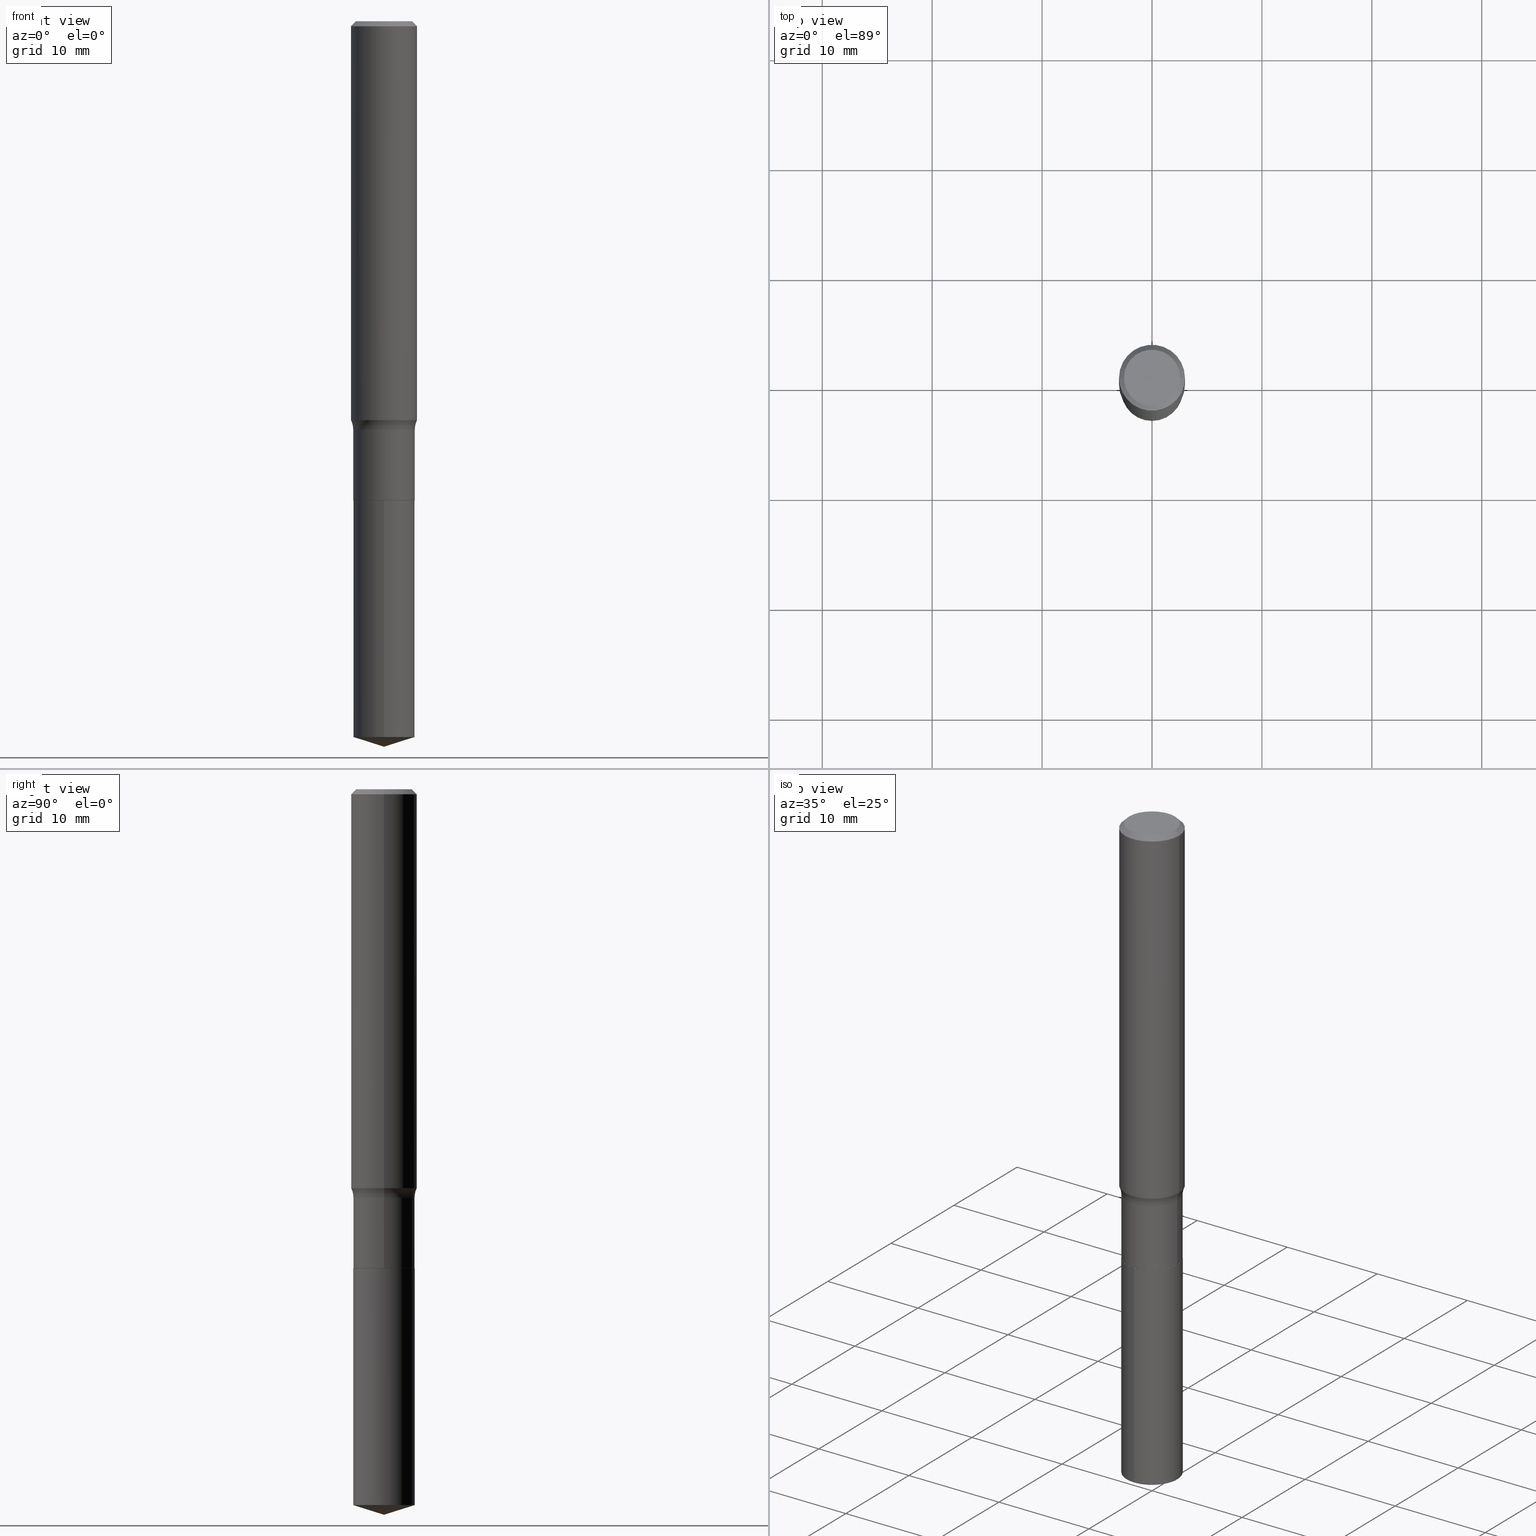
[diagram: canonical four-view strip — front | top / right | iso, engineering-drawing reading convention]
A machine part, canonical four-view strip (front | top / right | iso — engineering-drawing reading convention). The complete STEP part file that produces these views, byte-faithful:
ISO-10303-21;
HEADER;
FILE_DESCRIPTION (( 'STEP AP203' ),
    '1' );
FILE_NAME ('63751.STEP',
    '2024-04-19T15:07:28',
    ( '' ),
    ( '' ),
    'SwSTEP 2.0',
    'SolidWorks 2023',
    '' );
FILE_SCHEMA (( 'CONFIG_CONTROL_DESIGN' ));
ENDSEC;

DATA;
#1 = DIRECTION ( 'NONE',  ( 1.000000000000000000, -6.982962677686266711E-15, 0.000000000000000000 ) ) ;
#2 = DIRECTION ( 'NONE',  ( -2.445657340504628845E-29, 3.491211346966925605E-15, 1.000000000000000000 ) ) ;
#3 = VERTEX_POINT ( 'NONE', #460 ) ;
#4 = VERTEX_POINT ( 'NONE', #418 ) ;
#5 = PLANE ( 'NONE',  #120 ) ;
#6 = CARTESIAN_POINT ( 'NONE',  ( 3.494079824393523856E-29, -4.988619962128744507E-15, -1.428797544076708670 ) ) ;
#7 = AXIS2_PLACEMENT_3D ( 'NONE', #49, #386, #115 ) ;
#8 = APPLICATION_CONTEXT ( 'configuration controlled 3d designs of mechanical parts and assemblies' ) ;
#9 = ORIENTED_EDGE ( 'NONE', *, *, #61, .F. ) ;
#10 = CARTESIAN_POINT ( 'NONE',  ( 4.196424471413694799E-29, -5.991381977454837695E-15, -1.715999999999999970 ) ) ;
#11 = ORIENTED_EDGE ( 'NONE', *, *, #61, .T. ) ;
#12 = CARTESIAN_POINT ( 'NONE',  ( 4.197647205816786480E-29, -5.993127718124259199E-15, -1.716499999999999915 ) ) ;
#13 =( LENGTH_UNIT ( ) NAMED_UNIT ( * ) SI_UNIT ( $, .METRE. ) );
#14 = PRODUCT_DEFINITION ( 'UNKNOWN', '', #136, #57 ) ;
#15 = APPROVAL ( #451, 'UNSPECIFIED' ) ;
#16 = CARTESIAN_POINT ( 'NONE',  ( -0.1102499999999999869, 7.833733661755103618E-16, -5.423125937006033469E-30 ) ) ;
#17 = DIRECTION ( 'NONE',  ( 0.7071067811866199593, -2.468850131083015945E-15, 0.7071067811864750752 ) ) ;
#18 = AXIS2_PLACEMENT_3D ( 'NONE', #315, #277, #279 ) ;
#19 = AXIS2_PLACEMENT_3D ( 'NONE', #12, #363, #131 ) ;
#20 = CARTESIAN_POINT ( 'NONE',  ( 6.354801709083278687E-29, -9.071563563958859387E-15, -2.598399999999999821 ) ) ;
#21 = CARTESIAN_POINT ( 'NONE',  ( 4.197647205816786480E-29, -5.993127718124259199E-15, -1.716499999999999915 ) ) ;
#22 = EDGE_CURVE ( 'NONE', #147, #93, #211, .T. ) ;
#23 = DIRECTION ( 'NONE',  ( -1.000000000000000000, 6.982962677686266711E-15, 0.000000000000000000 ) ) ;
#24 = ORIENTED_EDGE ( 'NONE', *, *, #427, .T. ) ;
#25 = DIRECTION ( 'NONE',  ( -2.445657340504628845E-29, 3.491211346966926000E-15, 1.000000000000000000 ) ) ;
#26 = VERTEX_POINT ( 'NONE', #350 ) ;
#27 = CLOSED_SHELL ( 'NONE', ( #478, #256, #358, #352, #173 ) ) ;
#28 = CIRCLE ( 'NONE', #276, 0.07799999999999995826 ) ;
#29 = CIRCLE ( 'NONE', #204, 0.07799999999999995826 ) ;
#30 = SECURITY_CLASSIFICATION_LEVEL ( 'unclassified' ) ;
#31 = ADVANCED_FACE ( 'NONE', ( #228 ), #311, .F. ) ;
#32 = ORIENTED_EDGE ( 'NONE', *, *, #126, .F. ) ;
#33 = APPROVAL_DATE_TIME ( #454, #116 ) ;
#34 = CONICAL_SURFACE ( 'NONE', #182, 0.1180999999999999966, 0.7853981633974453924 ) ;
#35 = ORIENTED_EDGE ( 'NONE', *, *, #334, .T. ) ;
#36 = AXIS2_PLACEMENT_3D ( 'NONE', #450, #300, #463 ) ;
#37 = DIRECTION ( 'NONE',  ( 1.000000000000000000, -6.982962677686266711E-15, 4.876176775795936353E-29 ) ) ;
#38 = ADVANCED_FACE ( 'NONE', ( #75 ), #297, .F. ) ;
#39 = DIRECTION ( 'NONE',  ( 1.000000000000000000, -6.982962677686265922E-15, 4.876176775795935793E-29 ) ) ;
#40 = DIRECTION ( 'NONE',  ( -2.445468806185136877E-29, 3.491481338843145188E-15, 1.000000000000000000 ) ) ;
#41 = EDGE_LOOP ( 'NONE', ( #119, #53, #184, #296 ) ) ;
#42 = ADVANCED_BREP_SHAPE_REPRESENTATION ( '63751', ( #167, #327, #177 ), #84 ) ;
#43 = DIRECTION ( 'NONE',  ( -2.445657340504628845E-29, 3.491211346966925605E-15, 1.000000000000000000 ) ) ;
#44 = ORIENTED_EDGE ( 'NONE', *, *, #137, .F. ) ;
#45 = CYLINDRICAL_SURFACE ( 'NONE', #122, 0.1102500000000000008 ) ;
#46 = AXIS2_PLACEMENT_3D ( 'NONE', #232, #43, #146 ) ;
#47 = CIRCLE ( 'NONE', #380, 0.1102500000000000008 ) ;
#48 = ORIENTED_EDGE ( 'NONE', *, *, #420, .T. ) ;
#49 = CARTESIAN_POINT ( 'NONE',  ( 1.002970424325033577E-46, -1.431975951230896486E-32, -4.101342130344485961E-18 ) ) ;
#50 = ADVANCED_FACE ( 'NONE', ( #309 ), #5, .F. ) ;
#51 = ORIENTED_EDGE ( 'NONE', *, *, #387, .T. ) ;
#52 = CARTESIAN_POINT ( 'NONE',  ( 0.1181000000000001632, -5.813307854363494347E-15, -1.428797544076708670 ) ) ;
#53 = ORIENTED_EDGE ( 'NONE', *, *, #313, .F. ) ;
#54 = CARTESIAN_POINT ( 'NONE',  ( -8.993124965270355616E-28, 1.283772386236047280E-13, 36.77167874015748339 ) ) ;
#55 = CONICAL_SURFACE ( 'NONE', #176, 124.8659371009146923, 1.265363707695890794 ) ;
#56 = EDGE_CURVE ( 'NONE', #3, #172, #68, .T. ) ;
#57 = DESIGN_CONTEXT ( 'detailed design', #8, 'design' ) ;
#58 = DIRECTION ( 'NONE',  ( 1.000000000000000000, -6.982962677686270655E-15, 0.000000000000000000 ) ) ;
#59 = CARTESIAN_POINT ( 'NONE',  ( -0.1102499999999999730, -4.766161647848727228E-15, -1.462899999999999867 ) ) ;
#60 = CARTESIAN_POINT ( 'NONE',  ( -0.1181000000000001632, -4.149468991196065521E-15, -1.428797544076708670 ) ) ;
#61 = EDGE_CURVE ( 'NONE', #26, #85, #162, .T. ) ;
#62 = AXIS2_PLACEMENT_3D ( 'NONE', #87, #466, #280 ) ;
#63 = DIRECTION ( 'NONE',  ( -2.445468806185136597E-29, 3.491481338843145583E-15, 1.000000000000000000 ) ) ;
#64 = CARTESIAN_POINT ( 'NONE',  ( 0.1097500000000000003, -6.759507872000326876E-15, -1.716499999999999915 ) ) ;
#65 = EDGE_CURVE ( 'NONE', #145, #124, #291, .T. ) ;
#66 = APPROVAL_ROLE ( '' ) ;
#67 = COORDINATED_UNIVERSAL_TIME_OFFSET ( 5, 0, .BEHIND. ) ;
#68 = LINE ( 'NONE', #345, #168 ) ;
#69 = CARTESIAN_POINT ( 'NONE',  ( 0.000000000000000000, 0.000000000000000000, 0.000000000000000000 ) ) ;
#70 = ADVANCED_FACE ( 'NONE', ( #395 ), #34, .T. ) ;
#71 = APPROVAL_DATE_TIME ( #371, #199 ) ;
#72 = ORIENTED_EDGE ( 'NONE', *, *, #435, .T. ) ;
#73 = LOCAL_TIME ( 11, 7, 28.00000000000000000, #139 ) ;
#74 = CYLINDRICAL_SURFACE ( 'NONE', #159, 0.1102499999999999869 ) ;
#75 = FACE_OUTER_BOUND ( 'NONE', #469, .T. ) ;
#76 = CARTESIAN_POINT ( 'NONE',  ( 4.197647205816786480E-29, -5.993127718124259199E-15, -1.716499999999999915 ) ) ;
#77 = EDGE_LOOP ( 'NONE', ( #342, #278, #449, #347 ) ) ;
#78 = FACE_OUTER_BOUND ( 'NONE', #111, .T. ) ;
#79 = ORIENTED_EDGE ( 'NONE', *, *, #221, .F. ) ;
#80 = AXIS2_PLACEMENT_3D ( 'NONE', #353, #385, #149 ) ;
#81 = CC_DESIGN_PERSON_AND_ORGANIZATION_ASSIGNMENT ( #138, #183, ( #136 ) ) ;
#82 = ORIENTED_EDGE ( 'NONE', *, *, #435, .F. ) ;
#83 = CARTESIAN_POINT ( 'NONE',  ( 4.197647205816786480E-29, -5.993127718124259199E-15, -1.716499999999999915 ) ) ;
#84 =( GEOMETRIC_REPRESENTATION_CONTEXT ( 3 ) GLOBAL_UNCERTAINTY_ASSIGNED_CONTEXT ( ( #470 ) ) GLOBAL_UNIT_ASSIGNED_CONTEXT ( ( #325, #408, #222 ) ) REPRESENTATION_CONTEXT ( 'NONE', 'WORKASPACE' ) );
#85 = VERTEX_POINT ( 'NONE', #59 ) ;
#86 = DIRECTION ( 'NONE',  ( 7.105427357601001859E-15, 1.000000000000000000, -3.491481338843145583E-15 ) ) ;
#87 = CARTESIAN_POINT ( 'NONE',  ( 0.000000000000000000, 0.000000000000000000, 0.000000000000000000 ) ) ;
#88 = ADVANCED_FACE ( 'NONE', ( #241 ), #365, .T. ) ;
#89 = ORIENTED_EDGE ( 'NONE', *, *, #137, .T. ) ;
#90 = PLANE ( 'NONE',  #18 ) ;
#91 = CLOSED_SHELL ( 'NONE', ( #230, #70, #153, #376, #319, #442, #38, #490, #458, #50, #31, #88 ) ) ;
#92 = CIRCLE ( 'NONE', #349, 0.1003850000000000020 ) ;
#93 = VERTEX_POINT ( 'NONE', #355 ) ;
#94 = FACE_OUTER_BOUND ( 'NONE', #446, .T. ) ;
#95 = DIRECTION ( 'NONE',  ( -2.445657340504628845E-29, 3.491211346966925605E-15, 1.000000000000000000 ) ) ;
#96 = CARTESIAN_POINT ( 'NONE',  ( 4.332147990156996744E-31, -6.185159191760670395E-17, -0.01771500000000010913 ) ) ;
#97 = CARTESIAN_POINT ( 'NONE',  ( 0.000000000000000000, 0.000000000000000000, 0.000000000000000000 ) ) ;
#98 = VECTOR ( 'NONE', #323, 39.37007874015748143 ) ;
#99 = EDGE_CURVE ( 'NONE', #124, #145, #244, .T. ) ;
#100 = DIRECTION ( 'NONE',  ( 1.000000000000000000, 0.000000000000000000, 0.000000000000000000 ) ) ;
#101 = PERSON ( 'UNSPECIFIED', 'UNSPECIFIED', 'UNSPECIFIED', ('UNSPECIFIED'), ('UNSPECIFIED'), ('UNSPECIFIED') ) ;
#102 = VECTOR ( 'NONE', #25, 39.37007874015748143 ) ;
#103 = CALENDAR_DATE ( 2024, 19, 4 ) ;
#104 = DATE_AND_TIME ( #293, #170 ) ;
#105 = CC_DESIGN_PERSON_AND_ORGANIZATION_ASSIGNMENT ( #486, #301, ( #112 ) ) ;
#106 = DIRECTION ( 'NONE',  ( 2.438088387897960049E-29, -3.491481338843145188E-15, -1.000000000000000000 ) ) ;
#107 = FACE_OUTER_BOUND ( 'NONE', #163, .T. ) ;
#108 = DATE_TIME_ROLE ( 'creation_date' ) ;
#109 = CARTESIAN_POINT ( 'NONE',  ( 4.332147990156996744E-31, -6.185159191760670395E-17, -0.01771500000000010913 ) ) ;
#110 = DIRECTION ( 'NONE',  ( -2.445657340504628845E-29, 3.491211346966925605E-15, 1.000000000000000000 ) ) ;
#111 = EDGE_LOOP ( 'NONE', ( #488, #11, #422, #413 ) ) ;
#112 = SECURITY_CLASSIFICATION ( '', '', #30 ) ;
#113 = CARTESIAN_POINT ( 'NONE',  ( 0.1180999999999999966, -8.720764054544245267E-16, -0.01771500000000010913 ) ) ;
#114 = ORIENTED_EDGE ( 'NONE', *, *, #485, .F. ) ;
#115 = DIRECTION ( 'NONE',  ( 1.000000000000000000, -6.982962677686266711E-15, 4.876140833081945105E-29 ) ) ;
#116 = APPROVAL ( #481, 'UNSPECIFIED' ) ;
#117 = ORIENTED_EDGE ( 'NONE', *, *, #334, .F. ) ;
#118 = FACE_OUTER_BOUND ( 'NONE', #398, .T. ) ;
#119 = ORIENTED_EDGE ( 'NONE', *, *, #387, .F. ) ;
#120 = AXIS2_PLACEMENT_3D ( 'NONE', #156, #106, #410 ) ;
#121 = CARTESIAN_POINT ( 'NONE',  ( 3.577476316568235617E-29, -5.107688050593637090E-15, -1.462899999999999867 ) ) ;
#122 = AXIS2_PLACEMENT_3D ( 'NONE', #76, #110, #148 ) ;
#123 = LOCAL_TIME ( 11, 7, 28.00000000000000000, #262 ) ;
#124 = VERTEX_POINT ( 'NONE', #60 ) ;
#125 = DIRECTION ( 'NONE',  ( 1.000000000000000000, -6.982962677686264344E-15, 0.000000000000000000 ) ) ;
#126 = EDGE_CURVE ( 'NONE', #3, #330, #209, .T. ) ;
#127 = CARTESIAN_POINT ( 'NONE',  ( 0.1180999999999999966, -8.865394841523547570E-16, -0.01771500000000010913 ) ) ;
#128 = ORIENTED_EDGE ( 'NONE', *, *, #340, .T. ) ;
#129 = DIRECTION ( 'NONE',  ( 1.000000000000000000, -6.982962677686261977E-15, 0.000000000000000000 ) ) ;
#130 = AXIS2_PLACEMENT_3D ( 'NONE', #54, #360, #202 ) ;
#131 = DIRECTION ( 'NONE',  ( 1.000000000000000000, -6.982962677686264344E-15, 0.000000000000000000 ) ) ;
#132 = LINE ( 'NONE', #443, #416 ) ;
#133 = CC_DESIGN_PERSON_AND_ORGANIZATION_ASSIGNMENT ( #341, #215, ( #136 ) ) ;
#134 = CARTESIAN_POINT ( 'NONE',  ( -0.1003850000000000020, 7.319105043583386689E-16, -4.101342130349496461E-18 ) ) ;
#135 = ORIENTED_EDGE ( 'NONE', *, *, #286, .F. ) ;
#136 = PRODUCT_DEFINITION_FORMATION_WITH_SPECIFIED_SOURCE ( 'ANY', '', #227, .NOT_KNOWN. ) ;
#137 = EDGE_CURVE ( 'NONE', #330, #172, #373, .T. ) ;
#138 = PERSON_AND_ORGANIZATION ( #101, #194 ) ;
#139 = COORDINATED_UNIVERSAL_TIME_OFFSET ( 5, 0, .BEHIND. ) ;
#140 = VERTEX_POINT ( 'NONE', #436 ) ;
#141 = AXIS2_PLACEMENT_3D ( 'NONE', #321, #393, #429 ) ;
#142 = AXIS2_PLACEMENT_3D ( 'NONE', #21, #364, #207 ) ;
#143 = APPLICATION_PROTOCOL_DEFINITION ( 'international standard', 'config_control_design', 1994, #8 ) ;
#144 = DIRECTION ( 'NONE',  ( -6.982962677686265922E-15, -1.000000000000000000, 3.500519750498715082E-15 ) ) ;
#145 = VERTEX_POINT ( 'NONE', #52 ) ;
#146 = DIRECTION ( 'NONE',  ( -6.982962677686266711E-15, -1.000000000000000000, 2.477866660919966807E-15 ) ) ;
#147 = VERTEX_POINT ( 'NONE', #127 ) ;
#148 = DIRECTION ( 'NONE',  ( -6.982962677686266711E-15, -1.000000000000000000, 2.477866660919966807E-15 ) ) ;
#149 = DIRECTION ( 'NONE',  ( 1.000000000000000000, -6.982962677686268288E-15, 4.883557194083113462E-29 ) ) ;
#150 = CC_DESIGN_APPROVAL ( #199, ( #136 ) ) ;
#151 = APPLICATION_CONTEXT ( 'configuration controlled 3d designs of mechanical parts and assemblies' ) ;
#152 = DIRECTION ( 'NONE',  ( -2.445657340504628845E-29, 3.491211346966926000E-15, 1.000000000000000000 ) ) ;
#153 = ADVANCED_FACE ( 'NONE', ( #362 ), #158, .T. ) ;
#154 = EDGE_LOOP ( 'NONE', ( #32, #240, #44 ) ) ;
#155 = LINE ( 'NONE', #113, #457 ) ;
#156 = CARTESIAN_POINT ( 'NONE',  ( 5.014852121625167883E-47, -7.159879756154482429E-33, -2.050671065172242981E-18 ) ) ;
#157 = CC_DESIGN_DATE_AND_TIME_ASSIGNMENT ( #257, #178, ( #112 ) ) ;
#158 = CYLINDRICAL_SURFACE ( 'NONE', #62, 0.1181000000000000799 ) ;
#159 = AXIS2_PLACEMENT_3D ( 'NONE', #354, #389, #456 ) ;
#160 = CONICAL_SURFACE ( 'NONE', #440, 0.1180999999999999966, 0.7853981633974453924 ) ;
#161 = ORIENTED_EDGE ( 'NONE', *, *, #404, .T. ) ;
#162 = LINE ( 'NONE', #16, #298 ) ;
#163 = EDGE_LOOP ( 'NONE', ( #9, #128, #216, #79 ) ) ;
#164 = CARTESIAN_POINT ( 'NONE',  ( 0.1102499999999999869, -7.698716352149107826E-16, 5.375984895315018903E-30 ) ) ;
#165 = LENGTH_MEASURE_WITH_UNIT ( LENGTH_MEASURE( 0.02539999999999999897 ), #13 );
#166 = FACE_OUTER_BOUND ( 'NONE', #196, .T. ) ;
#167 = MANIFOLD_SOLID_BREP ( 'Body-Move/Copy2[1]', #27 ) ;
#168 = VECTOR ( 'NONE', #223, 39.37007874015748854 ) ;
#169 = CC_DESIGN_DATE_AND_TIME_ASSIGNMENT ( #181, #108, ( #14 ) ) ;
#170 = LOCAL_TIME ( 11, 7, 28.00000000000000000, #305 ) ;
#171 = DIRECTION ( 'NONE',  ( -6.982962677686266711E-15, -1.000000000000000000, 4.955733321839933614E-15 ) ) ;
#172 = VERTEX_POINT ( 'NONE', #247 ) ;
#173 = ADVANCED_FACE ( 'NONE', ( #166 ), #90, .F. ) ;
#174 = FACE_OUTER_BOUND ( 'NONE', #77, .T. ) ;
#175 = ORIENTED_EDGE ( 'NONE', *, *, #340, .F. ) ;
#176 = AXIS2_PLACEMENT_3D ( 'NONE', #384, #195, #144 ) ;
#177 = AXIS2_PLACEMENT_3D ( 'NONE', #381, #417, #100 ) ;
#178 = DATE_TIME_ROLE ( 'classification_date' ) ;
#179 = APPLICATION_PROTOCOL_DEFINITION ( 'international standard', 'config_control_design', 1994, #151 ) ;
#180 = ORIENTED_EDGE ( 'NONE', *, *, #22, .T. ) ;
#181 = DATE_AND_TIME ( #219, #374 ) ;
#182 = AXIS2_PLACEMENT_3D ( 'NONE', #246, #366, #430 ) ;
#183 = PERSON_AND_ORGANIZATION_ROLE ( 'creator' ) ;
#184 = ORIENTED_EDGE ( 'NONE', *, *, #294, .T. ) ;
#185 = DIRECTION ( 'NONE',  ( 1.000000000000000000, -6.982962677686268288E-15, 4.883557194083113462E-29 ) ) ;
#186 = PRODUCT_RELATED_PRODUCT_CATEGORY ( 'detail', '', ( #227 ) ) ;
#187 = CARTESIAN_POINT ( 'NONE',  ( 4.197647205816786480E-29, -5.993127718124259199E-15, -1.716499999999999915 ) ) ;
#188 = DIRECTION ( 'NONE',  ( 1.000000000000000000, -6.982962677686269077E-15, 0.000000000000000000 ) ) ;
#189 = EDGE_CURVE ( 'NONE', #140, #331, #434, .T. ) ;
#190 = ORIENTED_EDGE ( 'NONE', *, *, #65, .F. ) ;
#191 = LINE ( 'NONE', #489, #480 ) ;
#192 = VECTOR ( 'NONE', #272, 39.37007874015748143 ) ;
#193 = DIRECTION ( 'NONE',  ( -2.445468806185136597E-29, 3.491481338843145583E-15, 1.000000000000000000 ) ) ;
#194 = ORGANIZATION ( 'UNSPECIFIED', 'UNSPECIFIED', '' ) ;
#195 = DIRECTION ( 'NONE',  ( -2.445657340504628845E-29, 3.491211346966925605E-15, 1.000000000000000000 ) ) ;
#196 = EDGE_LOOP ( 'NONE', ( #48, #233 ) ) ;
#197 = DIRECTION ( 'NONE',  ( -2.438088387897960049E-29, 3.491481338843145188E-15, 1.000000000000000000 ) ) ;
#198 = DIRECTION ( 'NONE',  ( -2.445468806185136597E-29, 3.491481338843145583E-15, 1.000000000000000000 ) ) ;
#199 = APPROVAL ( #337, 'UNSPECIFIED' ) ;
#200 = CARTESIAN_POINT ( 'NONE',  ( -0.1882499999999999729, -3.770091350525249077E-15, -1.462899999999999867 ) ) ;
#201 = ORIENTED_EDGE ( 'NONE', *, *, #56, .F. ) ;
#202 = DIRECTION ( 'NONE',  ( -6.982962677686265922E-15, -1.000000000000000000, 3.500519750498715082E-15 ) ) ;
#203 = AXIS2_PLACEMENT_3D ( 'NONE', #476, #402, #171 ) ;
#204 = AXIS2_PLACEMENT_3D ( 'NONE', #274, #260, #423 ) ;
#205 = DIRECTION ( 'NONE',  ( -2.445468806185136597E-29, 3.491481338843145583E-15, 1.000000000000000000 ) ) ;
#206 = DIRECTION ( 'NONE',  ( 6.776566513254254982E-15, 0.9537169507482285979, 0.3007057995042680121 ) ) ;
#207 = DIRECTION ( 'NONE',  ( -6.982962677686266711E-15, -1.000000000000000000, 2.477866660919966807E-15 ) ) ;
#208 = EDGE_CURVE ( 'NONE', #124, #93, #243, .T. ) ;
#209 = LINE ( 'NONE', #20, #479 ) ;
#210 = DIRECTION ( 'NONE',  ( -0.7071067811866199593, 7.493145998870616062E-15, 0.7071067811864750752 ) ) ;
#211 = CIRCLE ( 'NONE', #275, 0.1180999999999999966 ) ;
#212 = CONICAL_SURFACE ( 'NONE', #308, 0.1097500000000000003, 0.7853981633975507526 ) ;
#213 = DIRECTION ( 'NONE',  ( -2.445468806185136597E-29, 3.491481338843145583E-15, 1.000000000000000000 ) ) ;
#214 = EDGE_CURVE ( 'NONE', #372, #282, #316, .T. ) ;
#215 = PERSON_AND_ORGANIZATION_ROLE ( 'design_supplier' ) ;
#216 = ORIENTED_EDGE ( 'NONE', *, *, #189, .T. ) ;
#217 = CIRCLE ( 'NONE', #46, 0.1102500000000000008 ) ;
#218 = CC_DESIGN_APPROVAL ( #15, ( #112 ) ) ;
#219 = CALENDAR_DATE ( 2024, 19, 4 ) ;
#220 = ORIENTED_EDGE ( 'NONE', *, *, #221, .T. ) ;
#221 = EDGE_CURVE ( 'NONE', #85, #331, #236, .T. ) ;
#222 =( NAMED_UNIT ( * ) SI_UNIT ( $, .STERADIAN. ) SOLID_ANGLE_UNIT ( ) );
#223 = DIRECTION ( 'NONE',  ( -6.659769872151629722E-15, -0.9537169507482263775, 0.3007057995042746179 ) ) ;
#224 = DIRECTION ( 'NONE',  ( -2.445468806185136597E-29, 3.491481338843145583E-15, 1.000000000000000000 ) ) ;
#225 = AXIS2_PLACEMENT_3D ( 'NONE', #97, #250, #367 ) ;
#226 = PERSON_AND_ORGANIZATION ( #101, #194 ) ;
#227 = PRODUCT ( '63751', '63751', '', ( #335 ) ) ;
#228 = FACE_OUTER_BOUND ( 'NONE', #303, .T. ) ;
#229 = CARTESIAN_POINT ( 'NONE',  ( 0.1102499999999999730, -5.877559685808547774E-15, -1.462899999999999867 ) ) ;
#230 = ADVANCED_FACE ( 'NONE', ( #467 ), #212, .T. ) ;
#231 = EDGE_LOOP ( 'NONE', ( #336, #35 ) ) ;
#232 = CARTESIAN_POINT ( 'NONE',  ( 4.197647205816786480E-29, -5.993127718124259199E-15, -1.716499999999999915 ) ) ;
#233 = ORIENTED_EDGE ( 'NONE', *, *, #394, .T. ) ;
#234 = CARTESIAN_POINT ( 'NONE',  ( 1.002970424325033577E-46, -1.431975951230896486E-32, -4.101342130344485961E-18 ) ) ;
#235 = EDGE_LOOP ( 'NONE', ( #452, #441, #306, #314 ) ) ;
#236 = CIRCLE ( 'NONE', #424, 0.1102499999999999730 ) ;
#237 = AXIS2_PLACEMENT_3D ( 'NONE', #264, #198, #188 ) ;
#238 = ORIENTED_EDGE ( 'NONE', *, *, #245, .F. ) ;
#239 = DIRECTION ( 'NONE',  ( 1.000000000000000000, -6.982962677686266711E-15, 4.876140833081945105E-29 ) ) ;
#240 = ORIENTED_EDGE ( 'NONE', *, *, #56, .T. ) ;
#241 = FACE_OUTER_BOUND ( 'NONE', #388, .T. ) ;
#242 = CARTESIAN_POINT ( 'NONE',  ( 4.197647205816786480E-29, -5.993127718124259199E-15, -1.716499999999999915 ) ) ;
#243 = LINE ( 'NONE', #475, #338 ) ;
#244 = CIRCLE ( 'NONE', #141, 0.1181000000000001632 ) ;
#245 = EDGE_CURVE ( 'NONE', #124, #85, #28, .T. ) ;
#246 = CARTESIAN_POINT ( 'NONE',  ( 4.332147990156996744E-31, -6.185159191760670395E-17, -0.01771500000000010913 ) ) ;
#247 = CARTESIAN_POINT ( 'NONE',  ( -7.698716352148484626E-16, -0.1102500000000089797, -2.563638308526091425 ) ) ;
#248 = CARTESIAN_POINT ( 'NONE',  ( -0.1097500000000000003, -5.210657838453437943E-15, -1.716499999999999915 ) ) ;
#249 = CC_DESIGN_PERSON_AND_ORGANIZATION_ASSIGNMENT ( #483, #253, ( #14 ) ) ;
#250 = DIRECTION ( 'NONE',  ( -2.445468806185136597E-29, 3.491481338843145583E-15, 1.000000000000000000 ) ) ;
#251 = ORIENTED_EDGE ( 'NONE', *, *, #427, .F. ) ;
#252 = CYLINDRICAL_SURFACE ( 'NONE', #225, 0.1181000000000000799 ) ;
#253 = PERSON_AND_ORGANIZATION_ROLE ( 'creator' ) ;
#254 = EDGE_LOOP ( 'NONE', ( #263, #271, #220, #251 ) ) ;
#255 = AXIS2_PLACEMENT_3D ( 'NONE', #6, #205, #58 ) ;
#256 = ADVANCED_FACE ( 'NONE', ( #94 ), #379, .T. ) ;
#257 = DATE_AND_TIME ( #103, #123 ) ;
#258 = APPROVAL_DATE_TIME ( #104, #15 ) ;
#259 = ORIENTED_EDGE ( 'NONE', *, *, #472, .T. ) ;
#260 = DIRECTION ( 'NONE',  ( -6.982962677686266711E-15, -1.000000000000000000, 3.491481338843145583E-15 ) ) ;
#261 = PRODUCT_DEFINITION_SHAPE ( 'NONE', 'NONE',  #14 ) ;
#262 = COORDINATED_UNIVERSAL_TIME_OFFSET ( 5, 0, .BEHIND. ) ;
#263 = ORIENTED_EDGE ( 'NONE', *, *, #99, .F. ) ;
#264 = CARTESIAN_POINT ( 'NONE',  ( 4.196424471413694799E-29, -5.991381977454837695E-15, -1.715999999999999970 ) ) ;
#265 = EDGE_CURVE ( 'NONE', #140, #26, #357, .T. ) ;
#266 = TOROIDAL_SURFACE ( 'NONE', #432, 0.1882499999999999729, 0.07799999999999995826 ) ;
#267 = CC_DESIGN_SECURITY_CLASSIFICATION ( #112, ( #136 ) ) ;
#268 = PERSON_AND_ORGANIZATION ( #101, #194 ) ;
#269 = VERTEX_POINT ( 'NONE', #134 ) ;
#270 = DIRECTION ( 'NONE',  ( -2.445468806185136597E-29, 3.491481338843145583E-15, 1.000000000000000000 ) ) ;
#271 = ORIENTED_EDGE ( 'NONE', *, *, #245, .T. ) ;
#272 = DIRECTION ( 'NONE',  ( -0.7071067811865454633, 2.468850131082235367E-15, -0.7071067811865495711 ) ) ;
#273 = VERTEX_POINT ( 'NONE', #437 ) ;
#274 = CARTESIAN_POINT ( 'NONE',  ( 0.1882499999999999729, -6.422230774668076609E-15, -1.462899999999999867 ) ) ;
#275 = AXIS2_PLACEMENT_3D ( 'NONE', #109, #193, #1 ) ;
#276 = AXIS2_PLACEMENT_3D ( 'NONE', #200, #86, #397 ) ;
#277 = DIRECTION ( 'NONE',  ( 2.445657340504628285E-29, -3.491211346966926000E-15, -1.000000000000000000 ) ) ;
#278 = ORIENTED_EDGE ( 'NONE', *, *, #465, .T. ) ;
#279 = DIRECTION ( 'NONE',  ( 6.982962677686265922E-15, 1.000000000000000000, -3.491211346966926000E-15 ) ) ;
#280 = DIRECTION ( 'NONE',  ( 1.000000000000000000, -6.982962677686266711E-15, 4.876176775795936353E-29 ) ) ;
#281 = EDGE_CURVE ( 'NONE', #93, #147, #415, .T. ) ;
#282 = VERTEX_POINT ( 'NONE', #248 ) ;
#283 = DIRECTION ( 'NONE',  ( -2.445468806185136597E-29, 3.491481338843145583E-15, 1.000000000000000000 ) ) ;
#284 = AXIS2_PLACEMENT_3D ( 'NONE', #96, #213, #368 ) ;
#285 = DIRECTION ( 'NONE',  ( -2.445468806185136597E-29, 3.491481338843145583E-15, 1.000000000000000000 ) ) ;
#286 = EDGE_CURVE ( 'NONE', #172, #330, #406, .T. ) ;
#287 = DIRECTION ( 'NONE',  ( 1.000000000000000000, -6.982962677686269077E-15, 0.000000000000000000 ) ) ;
#288 = CARTESIAN_POINT ( 'NONE',  ( 7.833733661755523687E-16, 0.1102499999999940195, -1.716500000000000137 ) ) ;
#289 = CYLINDRICAL_SURFACE ( 'NONE', #142, 0.1102500000000000008 ) ;
#290 = VERTEX_POINT ( 'NONE', #328 ) ;
#291 = CIRCLE ( 'NONE', #255, 0.1181000000000001632 ) ;
#292 = CC_DESIGN_APPROVAL ( #116, ( #14 ) ) ;
#293 = CALENDAR_DATE ( 2024, 19, 4 ) ;
#294 = EDGE_CURVE ( 'NONE', #269, #93, #414, .T. ) ;
#295 = CALENDAR_DATE ( 2024, 19, 4 ) ;
#296 = ORIENTED_EDGE ( 'NONE', *, *, #281, .T. ) ;
#297 = TOROIDAL_SURFACE ( 'NONE', #80, 0.1882499999999999729, 0.07799999999999995826 ) ;
#298 = VECTOR ( 'NONE', #318, 39.37007874015748143 ) ;
#299 = APPROVAL_ROLE ( '' ) ;
#300 = DIRECTION ( 'NONE',  ( -2.445468806185136597E-29, 3.491481338843145583E-15, 1.000000000000000000 ) ) ;
#301 = PERSON_AND_ORGANIZATION_ROLE ( 'classification_officer' ) ;
#302 = EDGE_CURVE ( 'NONE', #145, #147, #492, .T. ) ;
#303 = EDGE_LOOP ( 'NONE', ( #377, #82 ) ) ;
#304 = FACE_OUTER_BOUND ( 'NONE', #41, .T. ) ;
#305 = COORDINATED_UNIVERSAL_TIME_OFFSET ( 5, 0, .BEHIND. ) ;
#306 = ORIENTED_EDGE ( 'NONE', *, *, #22, .F. ) ;
#307 = FACE_OUTER_BOUND ( 'NONE', #254, .T. ) ;
#308 = AXIS2_PLACEMENT_3D ( 'NONE', #242, #283, #125 ) ;
#309 = FACE_OUTER_BOUND ( 'NONE', #231, .T. ) ;
#310 = DIRECTION ( 'NONE',  ( -6.982962677686266711E-15, -1.000000000000000000, 2.477866660919966807E-15 ) ) ;
#311 = PLANE ( 'NONE',  #322 ) ;
#312 = DIRECTION ( 'NONE',  ( 0.7071067811865454633, -7.319954787623248157E-15, -0.7071067811865495711 ) ) ;
#313 = EDGE_CURVE ( 'NONE', #269, #4, #92, .T. ) ;
#314 = ORIENTED_EDGE ( 'NONE', *, *, #302, .F. ) ;
#315 = CARTESIAN_POINT ( 'NONE',  ( 4.197647205816786480E-29, -5.993127718124259199E-15, -1.716499999999999915 ) ) ;
#316 = CIRCLE ( 'NONE', #19, 0.1097500000000000003 ) ;
#317 = DIRECTION ( 'NONE',  ( -2.445468806185136877E-29, 3.491481338843145188E-15, 1.000000000000000000 ) ) ;
#318 = DIRECTION ( 'NONE',  ( -2.445468806185136877E-29, 3.491481338843145188E-15, 1.000000000000000000 ) ) ;
#319 = ADVANCED_FACE ( 'NONE', ( #78 ), #74, .T. ) ;
#320 = ORIENTED_EDGE ( 'NONE', *, *, #265, .F. ) ;
#321 = CARTESIAN_POINT ( 'NONE',  ( 3.494079824393523856E-29, -4.988619962128744507E-15, -1.428797544076708670 ) ) ;
#322 = AXIS2_PLACEMENT_3D ( 'NONE', #187, #197, #39 ) ;
#323 = DIRECTION ( 'NONE',  ( -2.445468806185136877E-29, 3.491481338843145188E-15, 1.000000000000000000 ) ) ;
#324 = AXIS2_PLACEMENT_3D ( 'NONE', #10, #63, #287 ) ;
#325 =( CONVERSION_BASED_UNIT ( 'INCH', #165 ) LENGTH_UNIT ( ) NAMED_UNIT ( #444 ) );
#326 = AXIS2_PLACEMENT_3D ( 'NONE', #69, #224, #37 ) ;
#327 = MANIFOLD_SOLID_BREP ( 'Body-Move/Copy2[2]', #91 ) ;
#328 = CARTESIAN_POINT ( 'NONE',  ( -7.698716352148689729E-16, -0.1102500000000059960, -1.716499999999999471 ) ) ;
#329 = LINE ( 'NONE', #64, #333 ) ;
#330 = VERTEX_POINT ( 'NONE', #453 ) ;
#331 = VERTEX_POINT ( 'NONE', #229 ) ;
#332 = AXIS2_PLACEMENT_3D ( 'NONE', #400, #95, #468 ) ;
#333 = VECTOR ( 'NONE', #17, 39.37007874015748143 ) ;
#334 = EDGE_CURVE ( 'NONE', #4, #269, #439, .T. ) ;
#335 = MECHANICAL_CONTEXT ( 'NONE', #151, 'mechanical' ) ;
#336 = ORIENTED_EDGE ( 'NONE', *, *, #313, .T. ) ;
#337 = APPROVAL_STATUS ( 'not_yet_approved' ) ;
#338 = VECTOR ( 'NONE', #317, 39.37007874015748143 ) ;
#339 = APPROVAL_PERSON_ORGANIZATION ( #268, #199, #66 ) ;
#340 = EDGE_CURVE ( 'NONE', #26, #140, #396, .T. ) ;
#341 = PERSON_AND_ORGANIZATION ( #101, #194 ) ;
#342 = ORIENTED_EDGE ( 'NONE', *, *, #286, .T. ) ;
#343 = DIRECTION ( 'NONE',  ( 1.000000000000000000, -6.982962677686264344E-15, 0.000000000000000000 ) ) ;
#344 = PERSON_AND_ORGANIZATION ( #101, #194 ) ;
#345 = CARTESIAN_POINT ( 'NONE',  ( 6.354148795248410093E-29, -9.072490446069922529E-15, -2.598399999999999821 ) ) ;
#346 = DIRECTION ( 'NONE',  ( -2.445468806185136597E-29, 3.491481338843145583E-15, 1.000000000000000000 ) ) ;
#347 = ORIENTED_EDGE ( 'NONE', *, *, #401, .F. ) ;
#348 = CARTESIAN_POINT ( 'NONE',  ( 4.197647205816786480E-29, -5.993127718124259199E-15, -1.716499999999999915 ) ) ;
#349 = AXIS2_PLACEMENT_3D ( 'NONE', #234, #270, #239 ) ;
#350 = CARTESIAN_POINT ( 'NONE',  ( -0.1102500000000000008, -4.766161647848727228E-15, -1.715999999999999970 ) ) ;
#351 = CARTESIAN_POINT ( 'NONE',  ( 0.1097500000000000003, -6.759507872000326876E-15, -1.716499999999999915 ) ) ;
#352 = ADVANCED_FACE ( 'NONE', ( #118 ), #45, .T. ) ;
#353 = CARTESIAN_POINT ( 'NONE',  ( 3.577476316568235617E-29, -5.107688050593637090E-15, -1.462899999999999867 ) ) ;
#354 = CARTESIAN_POINT ( 'NONE',  ( 0.000000000000000000, 0.000000000000000000, 0.000000000000000000 ) ) ;
#355 = CARTESIAN_POINT ( 'NONE',  ( -0.1180999999999999966, -1.686084806090496170E-15, -0.01771500000000010913 ) ) ;
#356 = ORIENTED_EDGE ( 'NONE', *, *, #465, .F. ) ;
#357 = CIRCLE ( 'NONE', #324, 0.1102500000000000008 ) ;
#358 = ADVANCED_FACE ( 'NONE', ( #461 ), #55, .T. ) ;
#359 = CIRCLE ( 'NONE', #433, 0.1097500000000000003 ) ;
#360 = DIRECTION ( 'NONE',  ( -2.445657340504628845E-29, 3.491211346966925605E-15, 1.000000000000000000 ) ) ;
#361 = ORIENTED_EDGE ( 'NONE', *, *, #214, .T. ) ;
#362 = FACE_OUTER_BOUND ( 'NONE', #235, .T. ) ;
#363 = DIRECTION ( 'NONE',  ( -2.445468806185136597E-29, 3.491481338843145583E-15, 1.000000000000000000 ) ) ;
#364 = DIRECTION ( 'NONE',  ( -2.445657340504628845E-29, 3.491211346966925605E-15, 1.000000000000000000 ) ) ;
#365 = CONICAL_SURFACE ( 'NONE', #447, 0.1097500000000000003, 0.7853981633975507526 ) ;
#366 = DIRECTION ( 'NONE',  ( 2.445468806185136597E-29, -3.491481338843145583E-15, -1.000000000000000000 ) ) ;
#367 = DIRECTION ( 'NONE',  ( 1.000000000000000000, -6.982962677686266711E-15, 4.876176775795936353E-29 ) ) ;
#368 = DIRECTION ( 'NONE',  ( 1.000000000000000000, -6.982962677686266711E-15, 0.000000000000000000 ) ) ;
#369 = ORIENTED_EDGE ( 'NONE', *, *, #294, .F. ) ;
#370 = CC_DESIGN_PERSON_AND_ORGANIZATION_ASSIGNMENT ( #344, #405, ( #227 ) ) ;
#371 = DATE_AND_TIME ( #295, #73 ) ;
#372 = VERTEX_POINT ( 'NONE', #351 ) ;
#373 = CIRCLE ( 'NONE', #332, 0.1102500000000000008 ) ;
#374 = LOCAL_TIME ( 11, 7, 28.00000000000000000, #445 ) ;
#375 = CALENDAR_DATE ( 2024, 19, 4 ) ;
#376 = ADVANCED_FACE ( 'NONE', ( #307 ), #266, .F. ) ;
#377 = ORIENTED_EDGE ( 'NONE', *, *, #214, .F. ) ;
#378 = CARTESIAN_POINT ( 'NONE',  ( -0.1180999999999999966, 7.628363003171413738E-16, -0.01771500000000010913 ) ) ;
#379 = CONICAL_SURFACE ( 'NONE', #130, 124.8659371009146923, 1.265363707695890794 ) ;
#380 = AXIS2_PLACEMENT_3D ( 'NONE', #348, #2, #310 ) ;
#381 = CARTESIAN_POINT ( 'NONE',  ( 0.000000000000000000, 0.000000000000000000, 0.000000000000000000 ) ) ;
#382 = DIRECTION ( 'NONE',  ( 2.445468806185136597E-29, -3.491481338843145583E-15, -1.000000000000000000 ) ) ;
#383 = ORIENTED_EDGE ( 'NONE', *, *, #99, .T. ) ;
#384 = CARTESIAN_POINT ( 'NONE',  ( -8.993124965270355616E-28, 1.283772386236047280E-13, 36.77167874015748339 ) ) ;
#385 = DIRECTION ( 'NONE',  ( -2.445468806185136597E-29, 3.491481338843145583E-15, 1.000000000000000000 ) ) ;
#386 = DIRECTION ( 'NONE',  ( -2.445468806185136597E-29, 3.491481338843145583E-15, 1.000000000000000000 ) ) ;
#387 = EDGE_CURVE ( 'NONE', #4, #147, #155, .T. ) ;
#388 = EDGE_LOOP ( 'NONE', ( #484, #72, #491, #175 ) ) ;
#389 = DIRECTION ( 'NONE',  ( -2.445468806185136597E-29, 3.491481338843145583E-15, 1.000000000000000000 ) ) ;
#390 = ORIENTED_EDGE ( 'NONE', *, *, #401, .T. ) ;
#391 = DIRECTION ( 'NONE',  ( -2.445468806185136597E-29, 3.491481338843145583E-15, 1.000000000000000000 ) ) ;
#392 = EDGE_LOOP ( 'NONE', ( #428, #383, #464, #455 ) ) ;
#393 = DIRECTION ( 'NONE',  ( -2.445468806185136597E-29, 3.491481338843145583E-15, 1.000000000000000000 ) ) ;
#394 = EDGE_CURVE ( 'NONE', #273, #290, #217, .T. ) ;
#395 = FACE_OUTER_BOUND ( 'NONE', #462, .T. ) ;
#396 = CIRCLE ( 'NONE', #237, 0.1102500000000000008 ) ;
#397 = DIRECTION ( 'NONE',  ( -1.000000000000000000, 7.105427357601001859E-15, 0.000000000000000000 ) ) ;
#398 = EDGE_LOOP ( 'NONE', ( #356, #89, #390, #403 ) ) ;
#399 = CARTESIAN_POINT ( 'NONE',  ( 4.197647205816786480E-29, -5.993127718124259199E-15, -1.716499999999999915 ) ) ;
#400 = CARTESIAN_POINT ( 'NONE',  ( 6.269457228486298313E-29, -8.950666593300919607E-15, -2.563638308526091869 ) ) ;
#401 = EDGE_CURVE ( 'NONE', #172, #290, #191, .T. ) ;
#402 = DIRECTION ( 'NONE',  ( -2.445657340504628845E-29, 3.491211346966925605E-15, 1.000000000000000000 ) ) ;
#403 = ORIENTED_EDGE ( 'NONE', *, *, #394, .F. ) ;
#404 = EDGE_CURVE ( 'NONE', #331, #85, #407, .T. ) ;
#405 = PERSON_AND_ORGANIZATION_ROLE ( 'design_owner' ) ;
#406 = CIRCLE ( 'NONE', #203, 0.1102500000000000008 ) ;
#407 = CIRCLE ( 'NONE', #36, 0.1102499999999999730 ) ;
#408 =( NAMED_UNIT ( * ) PLANE_ANGLE_UNIT ( ) SI_UNIT ( $, .RADIAN. ) );
#409 = SHAPE_DEFINITION_REPRESENTATION ( #261, #42 ) ;
#410 = DIRECTION ( 'NONE',  ( -1.000000000000000000, 6.982962677686265922E-15, -4.876176775795935793E-29 ) ) ;
#411 = CYLINDRICAL_SURFACE ( 'NONE', #326, 0.1102499999999999869 ) ;
#412 = APPROVAL_ROLE ( '' ) ;
#413 = ORIENTED_EDGE ( 'NONE', *, *, #189, .F. ) ;
#414 = LINE ( 'NONE', #378, #192 ) ;
#415 = CIRCLE ( 'NONE', #284, 0.1180999999999999966 ) ;
#416 = VECTOR ( 'NONE', #210, 39.37007874015748143 ) ;
#417 = DIRECTION ( 'NONE',  ( 0.000000000000000000, 0.000000000000000000, 1.000000000000000000 ) ) ;
#418 = CARTESIAN_POINT ( 'NONE',  ( 0.1003850000000000020, -7.803837484803598359E-16, -4.101342130339306751E-18 ) ) ;
#419 = CARTESIAN_POINT ( 'NONE',  ( 3.577476316568235617E-29, -5.107688050593637090E-15, -1.462899999999999867 ) ) ;
#420 = EDGE_CURVE ( 'NONE', #290, #273, #47, .T. ) ;
#421 = CARTESIAN_POINT ( 'NONE',  ( 0.1181000000000000799, -8.246878922347486570E-16, 5.758764772215004644E-30 ) ) ;
#422 = ORIENTED_EDGE ( 'NONE', *, *, #404, .F. ) ;
#423 = DIRECTION ( 'NONE',  ( 1.000000000000000000, -6.982962677686261977E-15, 0.000000000000000000 ) ) ;
#424 = AXIS2_PLACEMENT_3D ( 'NONE', #121, #426, #129 ) ;
#425 = ORIENTED_EDGE ( 'NONE', *, *, #126, .T. ) ;
#426 = DIRECTION ( 'NONE',  ( -2.445468806185136597E-29, 3.491481338843145583E-15, 1.000000000000000000 ) ) ;
#427 = EDGE_CURVE ( 'NONE', #145, #331, #29, .T. ) ;
#428 = ORIENTED_EDGE ( 'NONE', *, *, #208, .F. ) ;
#429 = DIRECTION ( 'NONE',  ( 1.000000000000000000, -6.982962677686270655E-15, 0.000000000000000000 ) ) ;
#430 = DIRECTION ( 'NONE',  ( -1.000000000000000000, 6.982962677686266711E-15, 0.000000000000000000 ) ) ;
#431 = EDGE_LOOP ( 'NONE', ( #361, #259, #320, #114 ) ) ;
#432 = AXIS2_PLACEMENT_3D ( 'NONE', #419, #346, #185 ) ;
#433 = AXIS2_PLACEMENT_3D ( 'NONE', #83, #391, #343 ) ;
#434 = LINE ( 'NONE', #164, #98 ) ;
#435 = EDGE_CURVE ( 'NONE', #282, #372, #359, .T. ) ;
#436 = CARTESIAN_POINT ( 'NONE',  ( 0.1102500000000000008, -6.761253612669749168E-15, -1.715999999999999970 ) ) ;
#437 = CARTESIAN_POINT ( 'NONE',  ( 7.833733661755731749E-16, 0.1102499999999940195, -1.716500000000000137 ) ) ;
#438 = FACE_OUTER_BOUND ( 'NONE', #392, .T. ) ;
#439 = CIRCLE ( 'NONE', #7, 0.1003850000000000020 ) ;
#440 = AXIS2_PLACEMENT_3D ( 'NONE', #482, #382, #23 ) ;
#441 = ORIENTED_EDGE ( 'NONE', *, *, #208, .T. ) ;
#442 = ADVANCED_FACE ( 'NONE', ( #107 ), #411, .T. ) ;
#443 = CARTESIAN_POINT ( 'NONE',  ( -0.1097500000000000003, -5.213307065627549144E-15, -1.716499999999999915 ) ) ;
#444 = DIMENSIONAL_EXPONENTS ( 1.000000000000000000, 0.000000000000000000, 0.000000000000000000, 0.000000000000000000, 0.000000000000000000, 0.000000000000000000, 0.000000000000000000 ) ;
#445 = COORDINATED_UNIVERSAL_TIME_OFFSET ( 5, 0, .BEHIND. ) ;
#446 = EDGE_LOOP ( 'NONE', ( #201, #425, #135 ) ) ;
#447 = AXIS2_PLACEMENT_3D ( 'NONE', #399, #285, #471 ) ;
#448 = PERSON_AND_ORGANIZATION ( #101, #194 ) ;
#449 = ORIENTED_EDGE ( 'NONE', *, *, #420, .F. ) ;
#450 = CARTESIAN_POINT ( 'NONE',  ( 3.577476316568235617E-29, -5.107688050593637090E-15, -1.462899999999999867 ) ) ;
#451 = APPROVAL_STATUS ( 'not_yet_approved' ) ;
#452 = ORIENTED_EDGE ( 'NONE', *, *, #65, .T. ) ;
#453 = CARTESIAN_POINT ( 'NONE',  ( 7.833733661755734707E-16, 0.1102499999999910912, -2.563638308526092757 ) ) ;
#454 = DATE_AND_TIME ( #375, #474 ) ;
#455 = ORIENTED_EDGE ( 'NONE', *, *, #281, .F. ) ;
#456 = DIRECTION ( 'NONE',  ( 1.000000000000000000, -6.982962677686266711E-15, 4.876176775795936353E-29 ) ) ;
#457 = VECTOR ( 'NONE', #312, 39.37007874015748143 ) ;
#458 = ADVANCED_FACE ( 'NONE', ( #304 ), #160, .T. ) ;
#459 = APPROVAL_PERSON_ORGANIZATION ( #448, #116, #412 ) ;
#460 = CARTESIAN_POINT ( 'NONE',  ( 6.354796033567226499E-29, -9.071563563958859387E-15, -2.598399999999999821 ) ) ;
#461 = FACE_OUTER_BOUND ( 'NONE', #154, .T. ) ;
#462 = EDGE_LOOP ( 'NONE', ( #117, #51, #180, #369 ) ) ;
#463 = DIRECTION ( 'NONE',  ( 1.000000000000000000, -6.982962677686261977E-15, 0.000000000000000000 ) ) ;
#464 = ORIENTED_EDGE ( 'NONE', *, *, #302, .T. ) ;
#465 = EDGE_CURVE ( 'NONE', #330, #273, #477, .T. ) ;
#466 = DIRECTION ( 'NONE',  ( -2.445468806185136597E-29, 3.491481338843145583E-15, 1.000000000000000000 ) ) ;
#467 = FACE_OUTER_BOUND ( 'NONE', #431, .T. ) ;
#468 = DIRECTION ( 'NONE',  ( -6.982962677686266711E-15, -1.000000000000000000, 4.955733321839933614E-15 ) ) ;
#469 = EDGE_LOOP ( 'NONE', ( #238, #190, #24, #161 ) ) ;
#470 = UNCERTAINTY_MEASURE_WITH_UNIT (LENGTH_MEASURE( 1.000000000000000082E-05 ), #325, 'distance_accuracy_value', 'NONE');
#471 = DIRECTION ( 'NONE',  ( 1.000000000000000000, -6.982962677686264344E-15, 0.000000000000000000 ) ) ;
#472 = EDGE_CURVE ( 'NONE', #282, #26, #132, .T. ) ;
#473 = VECTOR ( 'NONE', #40, 39.37007874015748143 ) ;
#474 = LOCAL_TIME ( 11, 7, 28.00000000000000000, #67 ) ;
#475 = CARTESIAN_POINT ( 'NONE',  ( -0.1181000000000000799, 8.391509709326788873E-16, -5.809262341591047988E-30 ) ) ;
#476 = CARTESIAN_POINT ( 'NONE',  ( 6.269457228486298313E-29, -8.950666593300919607E-15, -2.563638308526091869 ) ) ;
#477 = LINE ( 'NONE', #288, #102 ) ;
#478 = ADVANCED_FACE ( 'NONE', ( #174 ), #289, .T. ) ;
#479 = VECTOR ( 'NONE', #206, 39.37007874015748854 ) ;
#480 = VECTOR ( 'NONE', #152, 39.37007874015748143 ) ;
#481 = APPROVAL_STATUS ( 'not_yet_approved' ) ;
#482 = CARTESIAN_POINT ( 'NONE',  ( 4.332147990156996744E-31, -6.185159191760670395E-17, -0.01771500000000010913 ) ) ;
#483 = PERSON_AND_ORGANIZATION ( #101, #194 ) ;
#484 = ORIENTED_EDGE ( 'NONE', *, *, #472, .F. ) ;
#485 = EDGE_CURVE ( 'NONE', #372, #140, #329, .T. ) ;
#486 = PERSON_AND_ORGANIZATION ( #101, #194 ) ;
#487 = APPROVAL_PERSON_ORGANIZATION ( #226, #15, #299 ) ;
#488 = ORIENTED_EDGE ( 'NONE', *, *, #265, .T. ) ;
#489 = CARTESIAN_POINT ( 'NONE',  ( -7.698716352148689729E-16, -0.1102500000000059960, -1.716499999999999471 ) ) ;
#490 = ADVANCED_FACE ( 'NONE', ( #438 ), #252, .T. ) ;
#491 = ORIENTED_EDGE ( 'NONE', *, *, #485, .T. ) ;
#492 = LINE ( 'NONE', #421, #473 ) ;
ENDSEC;
END-ISO-10303-21;
